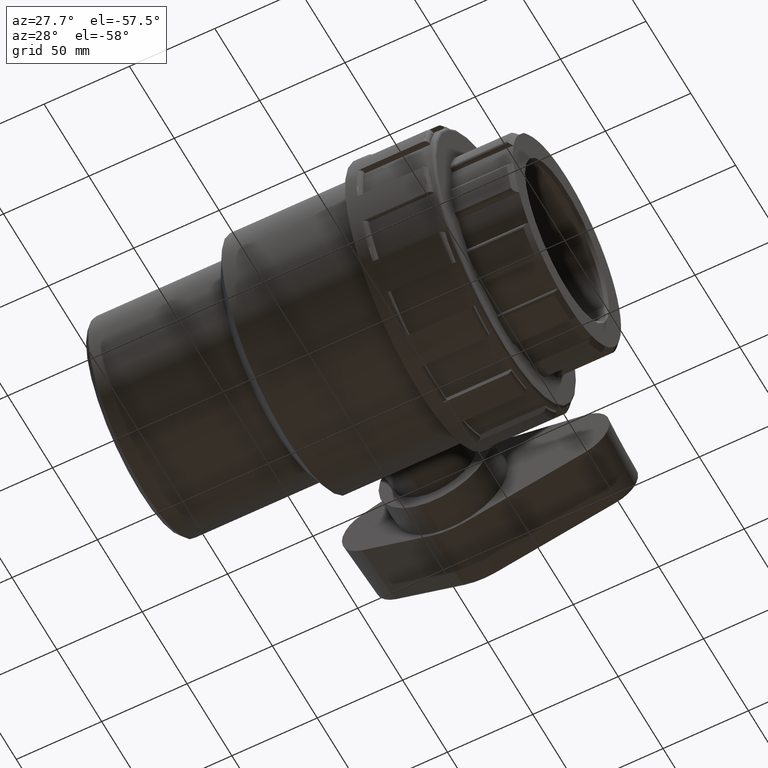
[diagram: clean part render]
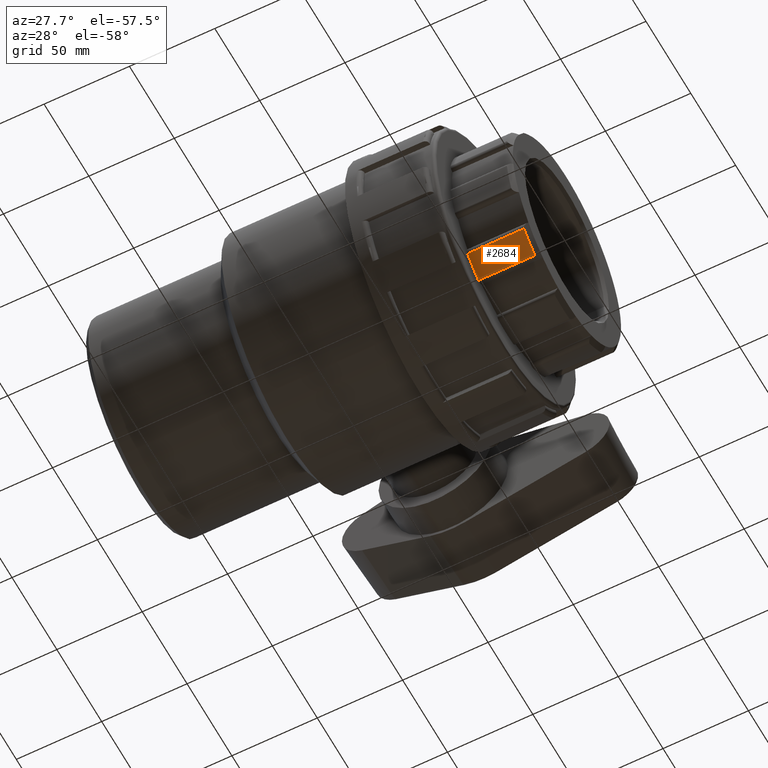
[diagram: same view with one face highlighted and labeled with its STEP entity id]
A machine part, auxiliary view. The second image highlights one B-rep face of the part: STEP entity #2684.
In plain terms, the highlighted cylindrical surface (partial cylindrical patch) has radius 63 mm, axis along (1, 0, 0).
Its self-contained STEP definition (entity closure, byte-faithful):
#161=FACE_OUTER_BOUND('',#327,.T.);
#327=EDGE_LOOP('',(#1826,#1827,#1828,#1829));
#520=CIRCLE('',#2867,63.);
#521=CIRCLE('',#2868,63.);
#700=LINE('',#4166,#864);
#706=LINE('',#4218,#870);
#864=VECTOR('',#3233,33.);
#870=VECTOR('',#3259,33.);
#1107=VERTEX_POINT('',#4152);
#1108=VERTEX_POINT('',#4165);
#1119=VERTEX_POINT('',#4215);
#1120=VERTEX_POINT('',#4217);
#1386=EDGE_CURVE('',#1107,#1108,#700,.T.);
#1400=EDGE_CURVE('',#1119,#1120,#706,.T.);
#1403=EDGE_CURVE('',#1120,#1107,#520,.T.);
#1404=EDGE_CURVE('',#1119,#1108,#521,.T.);
#1826=ORIENTED_EDGE('',*,*,#1386,.F.);
#1827=ORIENTED_EDGE('',*,*,#1403,.F.);
#1828=ORIENTED_EDGE('',*,*,#1400,.F.);
#1829=ORIENTED_EDGE('',*,*,#1404,.T.);
#2629=CYLINDRICAL_SURFACE('',#2866,63.);
#2684=ADVANCED_FACE('',(#161),#2629,.T.);
#2866=AXIS2_PLACEMENT_3D('',#4233,#3261,#3262);
#2867=AXIS2_PLACEMENT_3D('',#4234,#3263,#3264);
#2868=AXIS2_PLACEMENT_3D('',#4235,#3265,#3266);
#3233=DIRECTION('',(-1.,0.,0.));
#3259=DIRECTION('',(1.,0.,0.));
#3261=DIRECTION('center_axis',(1.,0.,0.));
#3262=DIRECTION('ref_axis',(0.,1.,0.));
#3263=DIRECTION('center_axis',(1.,0.,0.));
#3264=DIRECTION('ref_axis',(0.,-1.,0.));
#3265=DIRECTION('center_axis',(1.,0.,0.));
#3266=DIRECTION('ref_axis',(0.,0.,-1.));
#4152=CARTESIAN_POINT('',(122.3,-30.6865588082881,-55.0212241640031));
#4165=CARTESIAN_POINT('',(89.3,-30.6865588082881,-55.0212241640031));
#4166=CARTESIAN_POINT('',(125.,-30.6865588082881,-55.0212241640031));
#4215=CARTESIAN_POINT('',(89.3,-42.8456256050642,-46.1871450352873));
#4217=CARTESIAN_POINT('',(122.3,-42.8456256050642,-46.1871450352873));
#4218=CARTESIAN_POINT('',(125.,-42.8456256050642,-46.1871450352873));
#4233=CARTESIAN_POINT('Origin',(107.15,0.,0.));
#4234=CARTESIAN_POINT('Origin',(122.3,0.,0.));
#4235=CARTESIAN_POINT('Origin',(89.3,0.,0.));